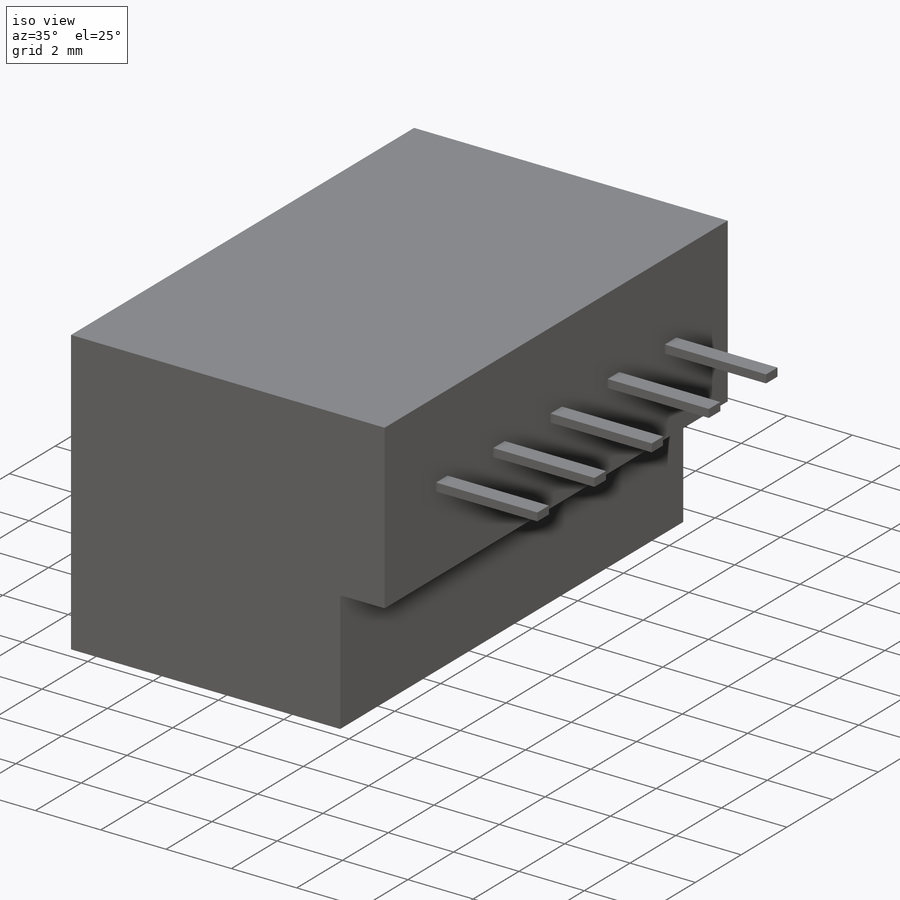
[diagram: iso view]
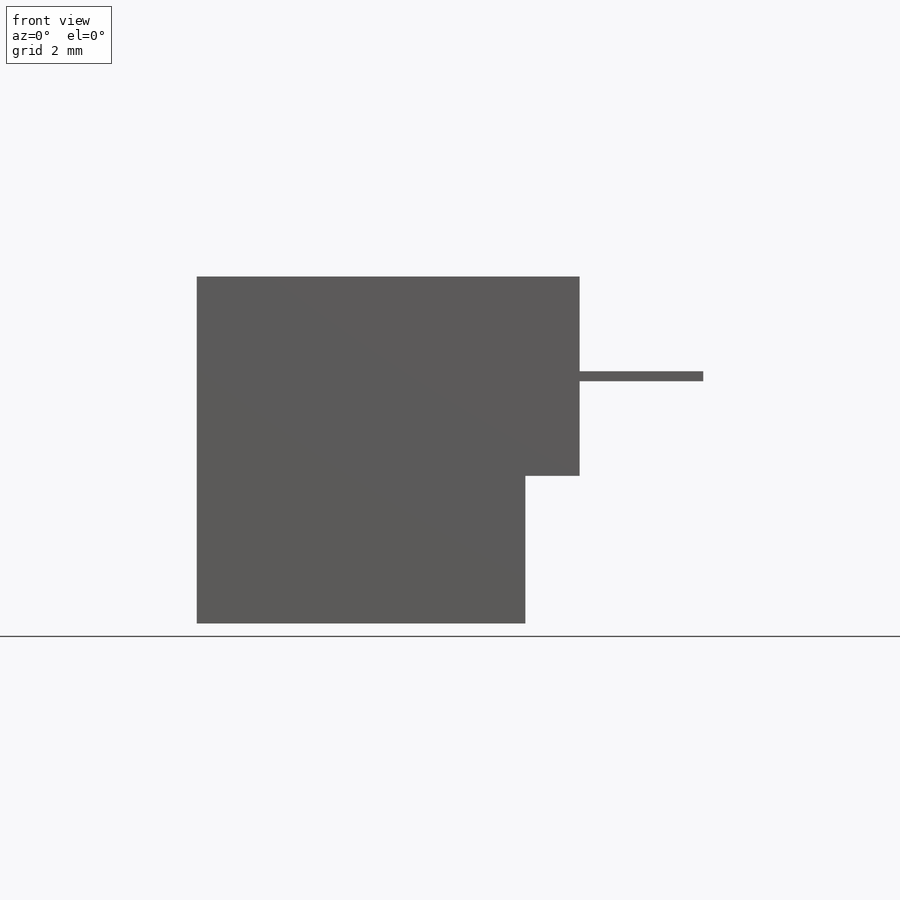
[diagram: front view]
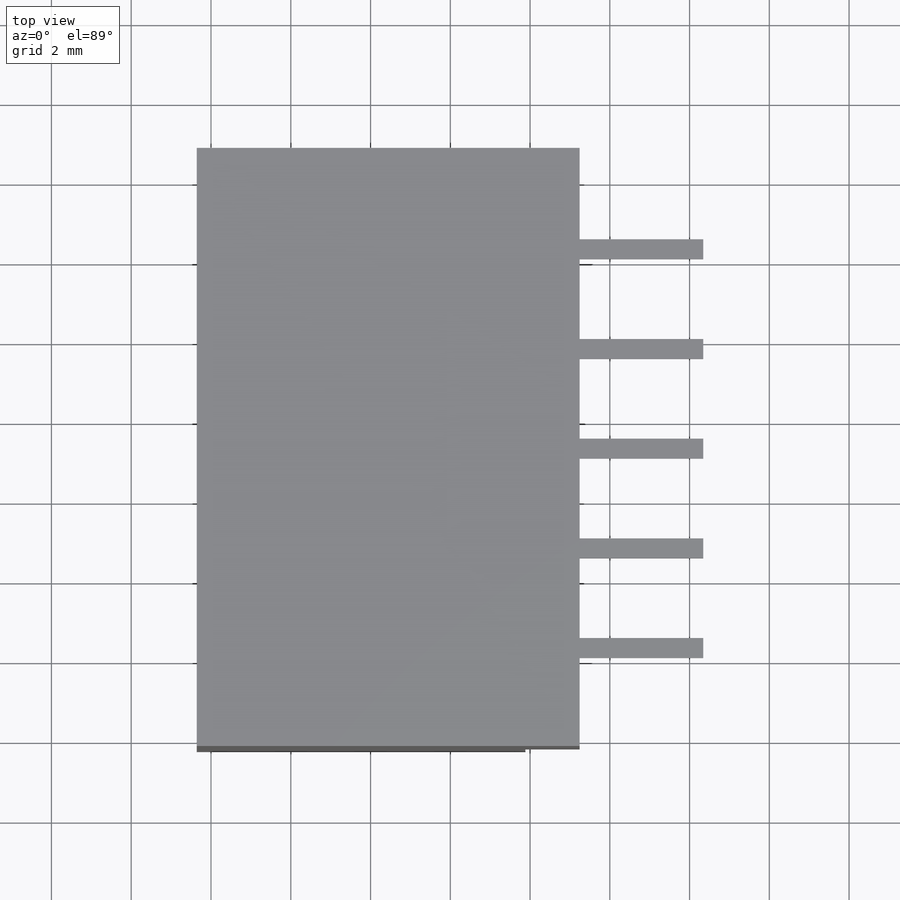
[diagram: top view]
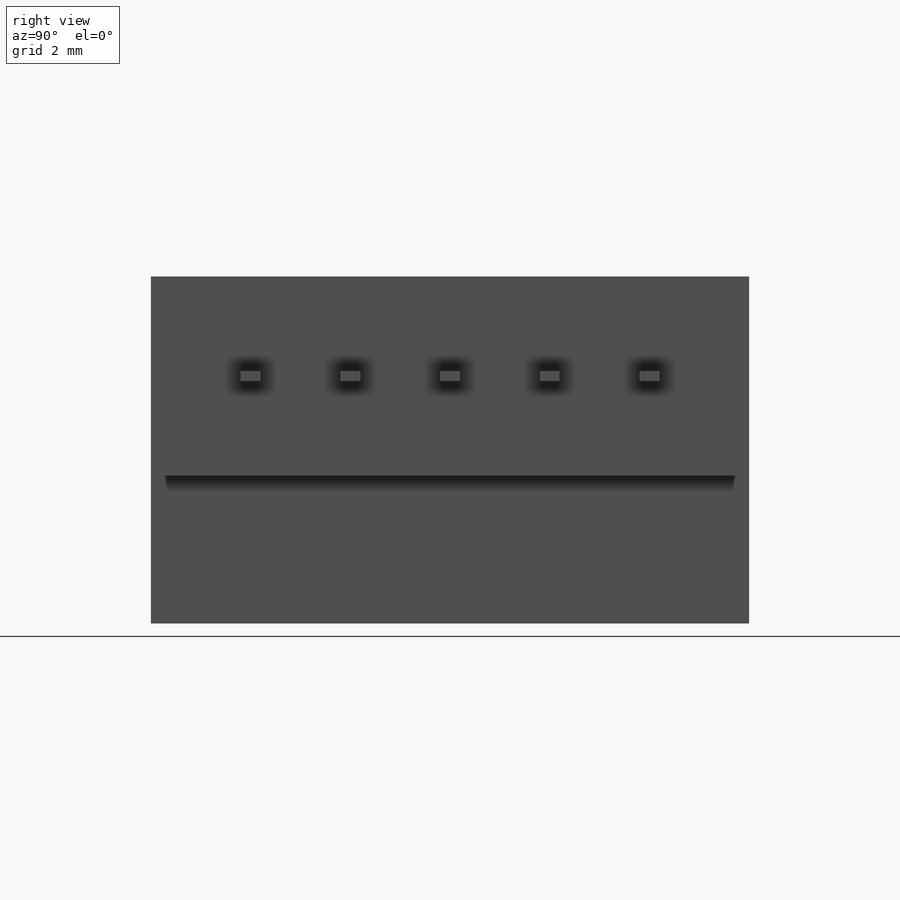
[diagram: right view]
SOLIDWORKS PART (.sldprt)
format: sldprt  version: not decoded by parser v0  size: 223,744 bytes
history: native  units: mm
features: sketch x4, extrude x3, material x1, cut_extrude x1 (+13 scaffold rows collapsed)
feature tree (22):
  scaffold x13  (default folders/planes/origin — collapsed)
  material  "Material <not specified>"
  sketch  "Sketch1"  dims[D1=15.0mm D2=8.24mm]
  extrude  "Boss-Extrude1"  Depth=3.7mm
  sketch  "Sketch2"  dims[D1=1.36mm]
  extrude  "Boss-Extrude2"  Depth=5mm
  sketch  "Sketch3"  dims[D1=0.5mm D2=0.25mm D3=2.375mm D4=2.375mm D5=0.5mm D6=0.5mm D7=0.5mm D8=0.5mm D9=2.25mm D10=2.0mm D11=2.0mm D12=2.0mm D13=2.25mm D14=2.5mm]
  extrude  "Boss-Extrude3"  Depth=3.1mm
  sketch  "Sketch4"  dims[D1=4.5mm D2=4.0mm D3=4.12mm D4=4.12mm D5=4.12mm D6=8.0mm D7=3.5mm D8=3.5mm]
  cut_extrude  "Cut-Extrude1"  Depth=0.5mm
decode coverage: 8 of 8 modeling features carry decoded parameters
note: suppression state not decoded; provenance and decode notes live in map.json
